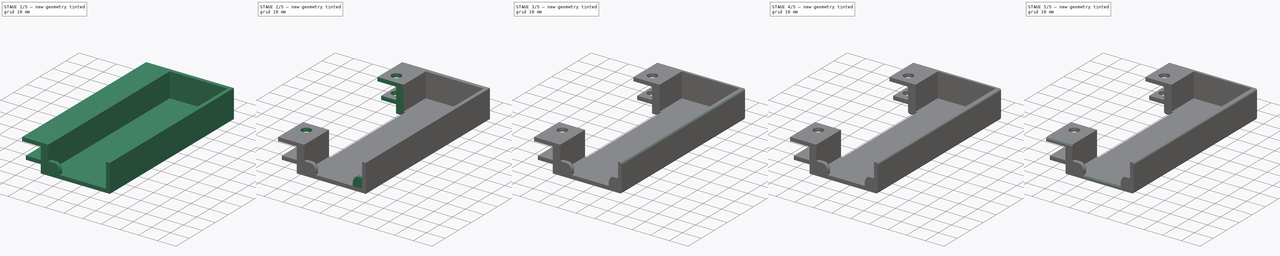
[diagram: build sequence overview — one tinted view per stage of 5, left to right]
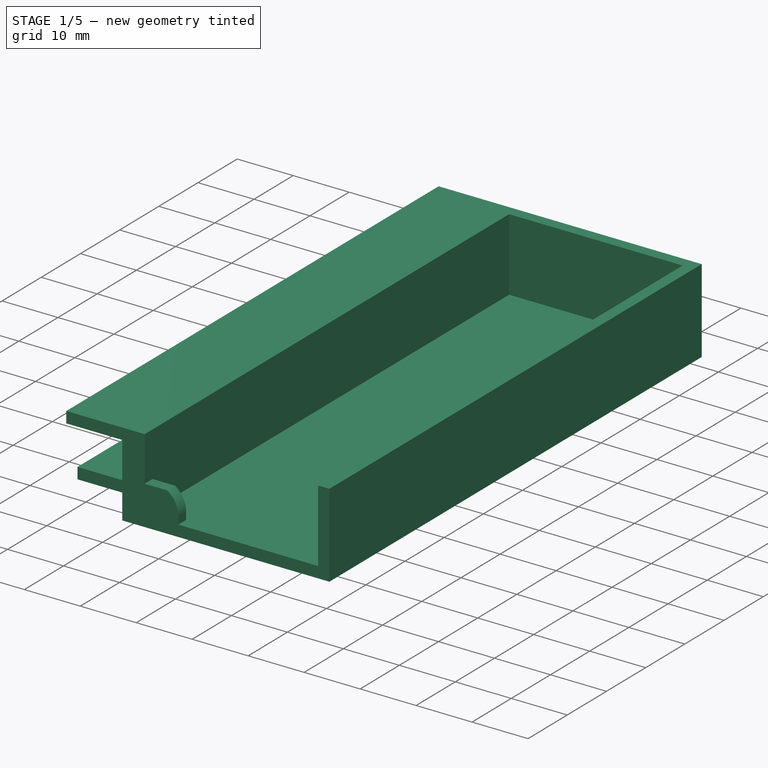
[diagram: stage 1 of 5 — iso view after this stage's code; geometry added in this stage tinted green]
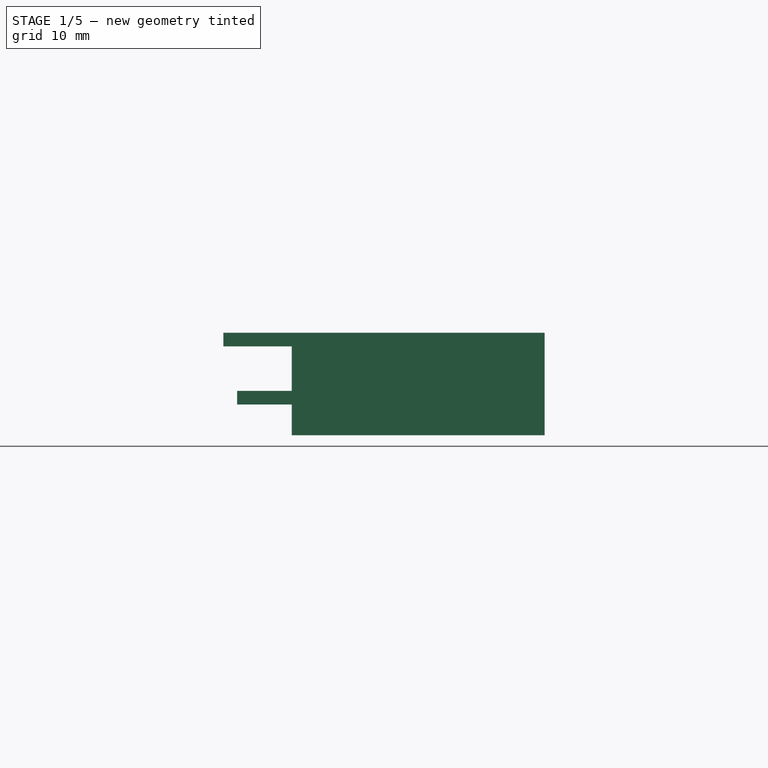
[diagram: stage 1 of 5 — front view after this stage's code; geometry added in this stage tinted green]
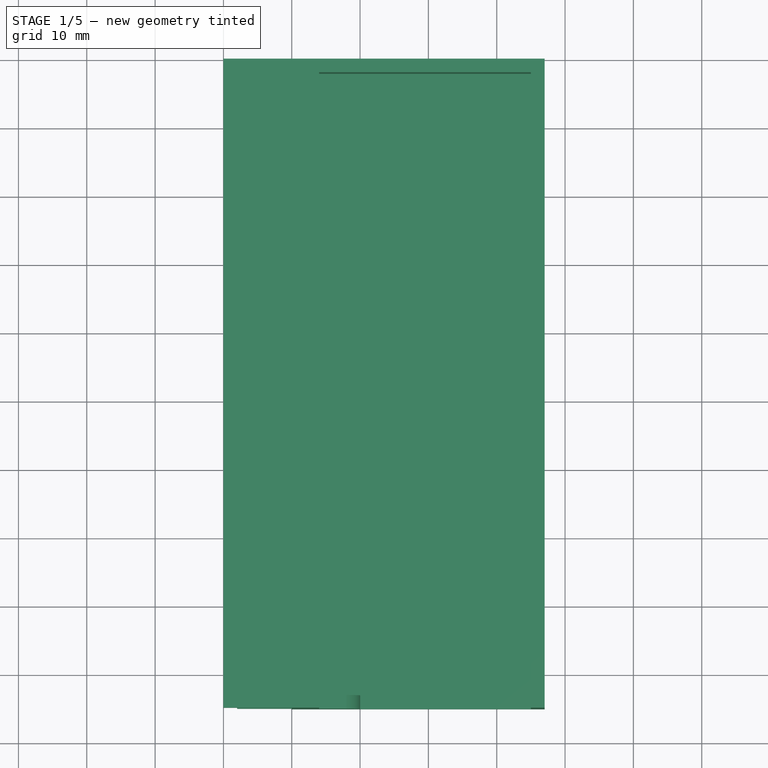
[diagram: stage 1 of 5 — top view after this stage's code; geometry added in this stage tinted green]
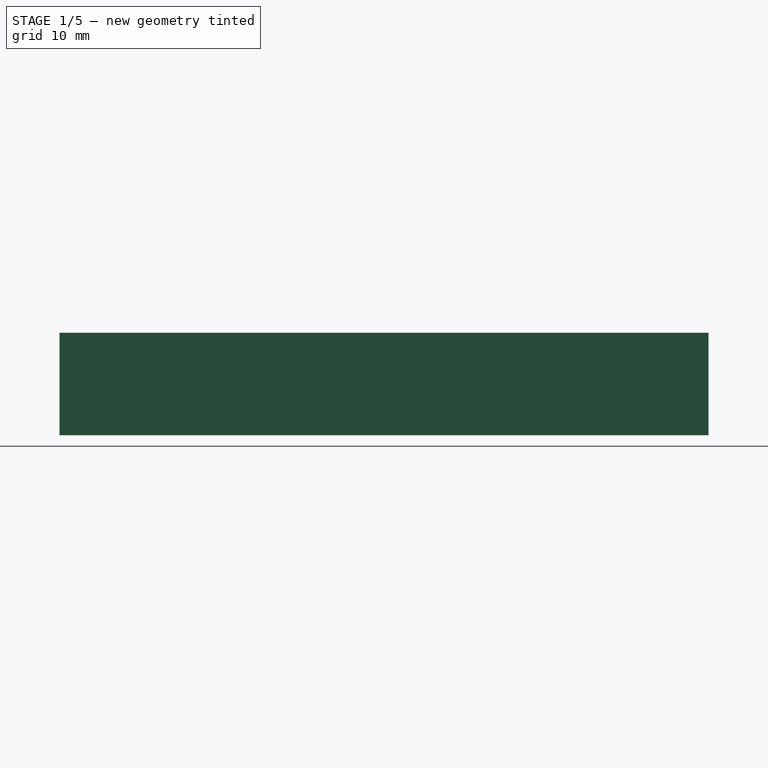
[diagram: stage 1 of 5 — right view after this stage's code; geometry added in this stage tinted green]
FCSTD DOCUMENT  (FreeCAD 0.18R4 (GitTag))
Label: sts-pi-batterybracket02
License: All rights reserved
LicenseURL: http://en.wikipedia.org/wiki/All_rights_reserved
objects: PartDesign::Fillet×10, Sketcher::SketchObject×6, PartDesign::Pad×4, PartDesign::Pocket×2, PartDesign::Body×1
note: 29 computed .brp shape members not serialized (recipe doc carries the construction recipe); baked Part::Feature solids carry a one-line shape summary decoded from their .brp

FEATURE [Sketcher::SketchObject] Sketch
  MapMode = 5
  Placement = pos=(0,0,0) rot=(1,0,0;1.5708rad)
  Support = -> [XZ_Plane]
  sketch-geometry (14):
    g0: LineSegment StartX=2 StartY=-3.25 StartZ=0 EndX=10 EndY=-3.25 EndZ=0
    g1: LineSegment StartX=10 StartY=-3.25 StartZ=0 EndX=10 EndY=3.25 EndZ=0
    g2: LineSegment StartX=10 StartY=3.25 StartZ=0 EndX=0 EndY=3.25 EndZ=0
    g3: LineSegment StartX=0 StartY=3.25 StartZ=0 EndX=0 EndY=5.25 EndZ=0
    g4: LineSegment StartX=0 StartY=5.25 StartZ=0 EndX=14 EndY=5.25 EndZ=0
    g5: LineSegment StartX=14 StartY=5.25 StartZ=0 EndX=14 EndY=-7.75 EndZ=0
    g6: LineSegment StartX=14 StartY=-7.75 StartZ=0 EndX=45 EndY=-7.75 EndZ=0
    g7: LineSegment StartX=45 StartY=-7.75 StartZ=0 EndX=45 EndY=5.25 EndZ=0
    g8: LineSegment StartX=45 StartY=5.25 StartZ=0 EndX=47 EndY=5.25 EndZ=0
    g9: LineSegment StartX=47 StartY=5.25 StartZ=0 EndX=47 EndY=-9.75 EndZ=0
    g10: LineSegment StartX=47 StartY=-9.75 StartZ=0 EndX=10 EndY=-9.75 EndZ=0
    g11: LineSegment StartX=10 StartY=-9.75 StartZ=0 EndX=10 EndY=-5.25 EndZ=0
    g12: LineSegment StartX=10 StartY=-5.25 StartZ=0 EndX=2 EndY=-5.25 EndZ=0
    g13: LineSegment StartX=2 StartY=-5.25 StartZ=0 EndX=2 EndY=-3.25 EndZ=0
  constraints (41):
    c: Horizontal(g0)
    c: Coincident(g0,g1)
    c: Coincident(g1,g2)
    c: Horizontal(g2)
    c: Coincident(g2,g3)
    c: Vertical(g3)
    c: Coincident(g3,g4)
    c: Horizontal(g4)
    c: Coincident(g4,g5)
    c: Vertical(g5)
    c: Coincident(g5,g6)
    c: Horizontal(g6)
    c: Coincident(g6,g7)
    c: Vertical(g7)
    c: Coincident(g7,g8)
    c: Coincident(g8,g9)
    c: Vertical(g9)
    c: Coincident(g9,g10)
    c: Horizontal(g10)
    c: Coincident(g10,g11)
    c: Vertical(g11)
    c: Coincident(g11,g12)
    c: Horizontal(g12)
    c: Coincident(g12,g13)
    c: Vertical(g13)
    c: Coincident(g0,g13)
    c: Horizontal(g8)
    c: DistanceX(g2,g2) = 10
    c: DistanceY(g1,g1) = 6.5
    c: Symmetric(g1,g0,g-1)
    c: DistanceY(g3,g3) = 2
    c: DistanceY(g13,g13) = 2
    c: DistanceX(g4,g4) = 14
    c: DistanceY(g5,g5) = 13
    c: DistanceY(g10,g5) = 2
    c: DistanceX(g6,g6) = 31
    c: DistanceX(g8,g8) = 2
    c: DistanceY(g7,g7) = 13
    c: DistanceX(g-1,g2) = 0
    c: DistanceX(g12) = 2
    c: DistanceX(g12,g12) = 8
FEATURE [PartDesign::Pad] Pad
  Length = 95
  Length2 = 100
  Placement = pos=(0,0,0) rot=(1,0,0;1.5708rad)
  Profile = -> Sketch
  Type = 0
FEATURE [Sketcher::SketchObject] Sketch001
  ExternalGeometry = -> [Pad]
  MapMode = 5
  Placement = pos=(0,0,0) rot=(-1,0,0;1.5708rad)
  Support = -> [Pad]
  sketch-geometry (4):
    g0: LineSegment StartX=10 StartY=9.75 StartZ=0 EndX=47 EndY=9.75 EndZ=0
    g1: LineSegment StartX=47 StartY=9.75 StartZ=0 EndX=47 EndY=-5.25 EndZ=0
    g2: LineSegment StartX=47 StartY=-5.25 StartZ=0 EndX=10 EndY=-5.25 EndZ=0
    g3: LineSegment StartX=10 StartY=-5.25 StartZ=0 EndX=10 EndY=9.75 EndZ=0
  constraints (10):
    c: Coincident(g0,g1)
    c: Coincident(g1,g2)
    c: Coincident(g2,g3)
    c: Coincident(g3,g0)
    c: Horizontal(g0)
    c: Horizontal(g2)
    c: Vertical(g1)
    c: Vertical(g3)
    c: Coincident(g0,g-3)
    c: Coincident(g1,g-4)
FEATURE [PartDesign::Pad] Pad001  label="full end"
  BaseFeature = -> Pad
  Length = 2
  Length2 = 100
  Placement = pos=(0,0,0) rot=(1,0,0;1.5708rad)
  Profile = -> Sketch001
  Reversed = true
  Type = 0
FEATURE [Sketcher::SketchObject] Sketch002
  ExternalGeometry = -> [Pad001]
  MapMode = 5
  Placement = pos=(0,-95,-2.11e-14) rot=(1,0,0;1.5708rad)
  Support = -> [Pad001]
  sketch-geometry (5):
    g0: LineSegment StartX=10 StartY=-9.75 StartZ=0 EndX=10 EndY=-2.75 EndZ=0
    g1: LineSegment StartX=10 StartY=-9.75 StartZ=0 EndX=20 EndY=-9.75 EndZ=0
    g2: LineSegment StartX=10 StartY=-2.75 StartZ=0 EndX=18 EndY=-2.75 EndZ=0
    g3: LineSegment StartX=20 StartY=-9.75 StartZ=0 EndX=20 EndY=-6.75 EndZ=0
    g4: ArcOfCircle CenterX=15.6626 CenterY=-6.41868 CenterZ=0 NormalX=0 NormalY=0 NormalZ=1 AngleXU=0 Radius=4.35 StartAngle=6.20695 EndAngle=7.28672
  constraints (15):
    c: Vertical(g0)
    c: Coincident(g1,g0)
    c: Horizontal(g1)
    c: Coincident(g2,g0)
    c: Horizontal(g2)
    c: Vertical(g3)
    c: Coincident(g4,g2)
    c: Coincident(g4,g3)
    c: Coincident(g1,g3)
    c: Coincident(g-3,g0)
    c: DistanceY(g0,g0) = 7
    c: DistanceX(g0,g1) = 10
    c: DistanceX(g2,g2) = 8
    c: Radius(g4) = 4.35
    c: DistanceY(g1,g3) = 3
FEATURE [PartDesign::Pad] Pad002  label="sml end1"
  BaseFeature = -> Pad001
  Length = 2
  Length2 = 100
  Placement = pos=(0,0,0) rot=(1,0,0;1.5708rad)
  Profile = -> Sketch002
  Reversed = true
  Type = 0
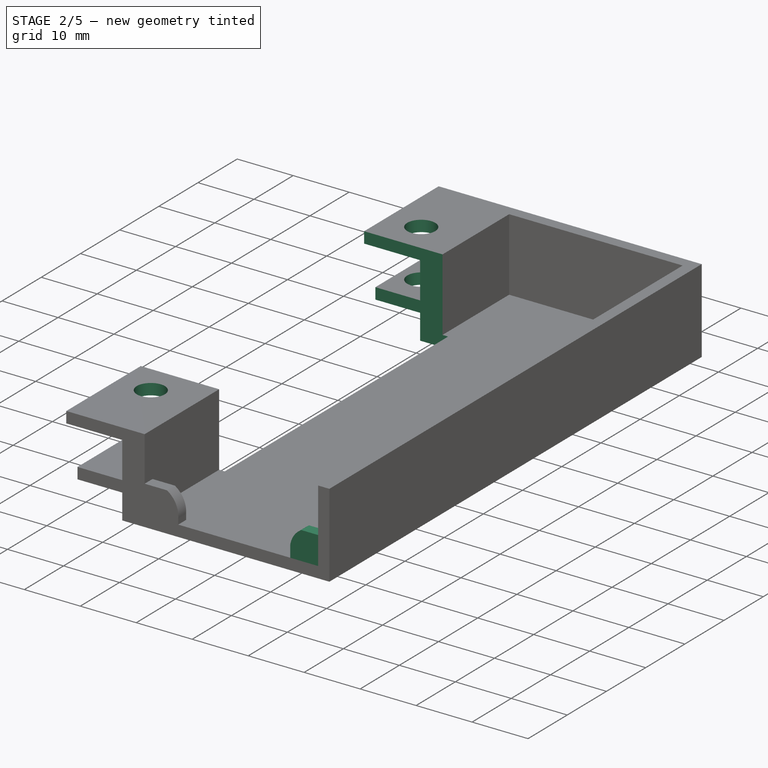
[diagram: stage 2 of 5 — iso view after this stage's code; geometry added in this stage tinted green]
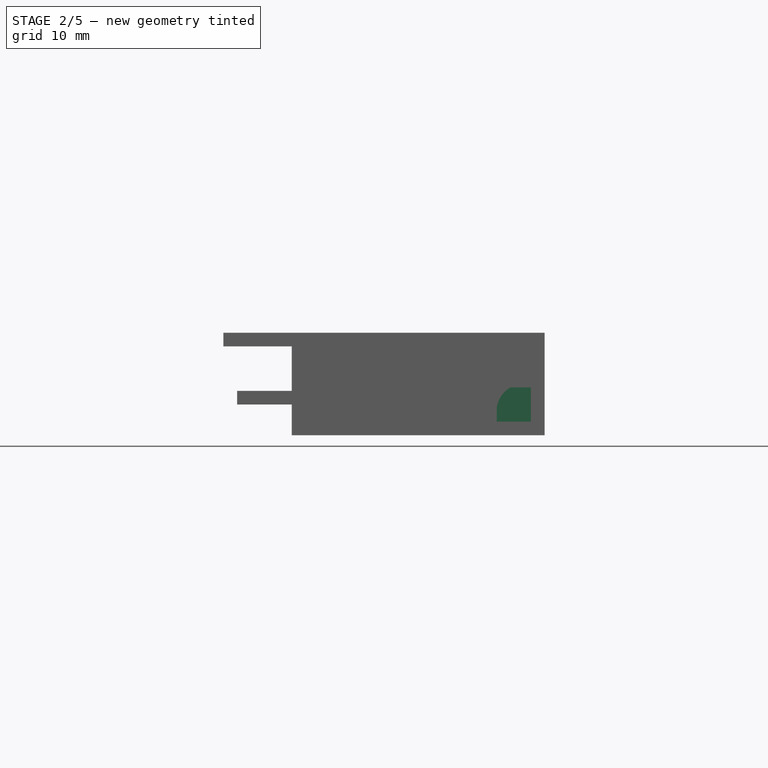
[diagram: stage 2 of 5 — front view after this stage's code; geometry added in this stage tinted green]
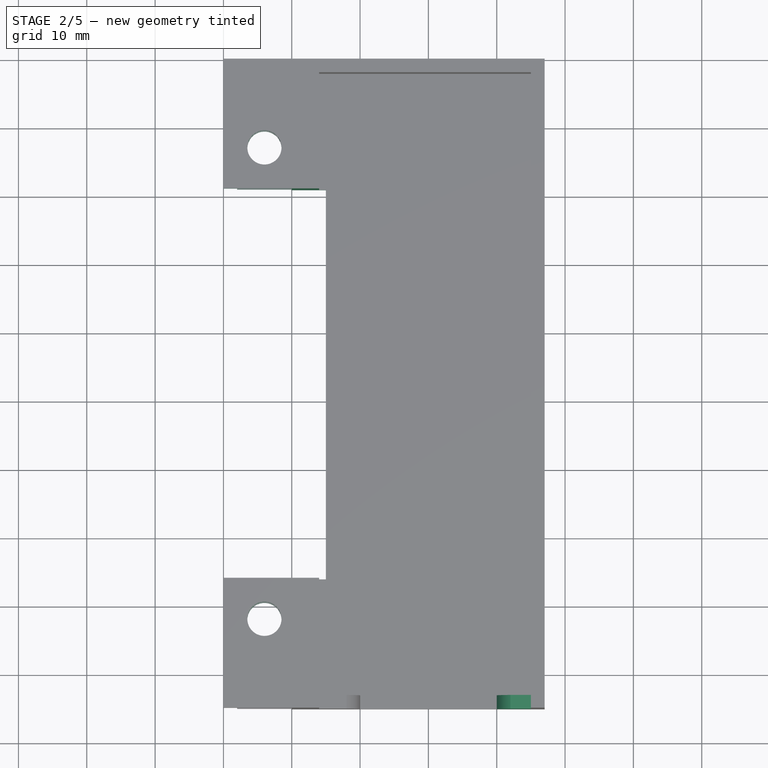
[diagram: stage 2 of 5 — top view after this stage's code; geometry added in this stage tinted green]
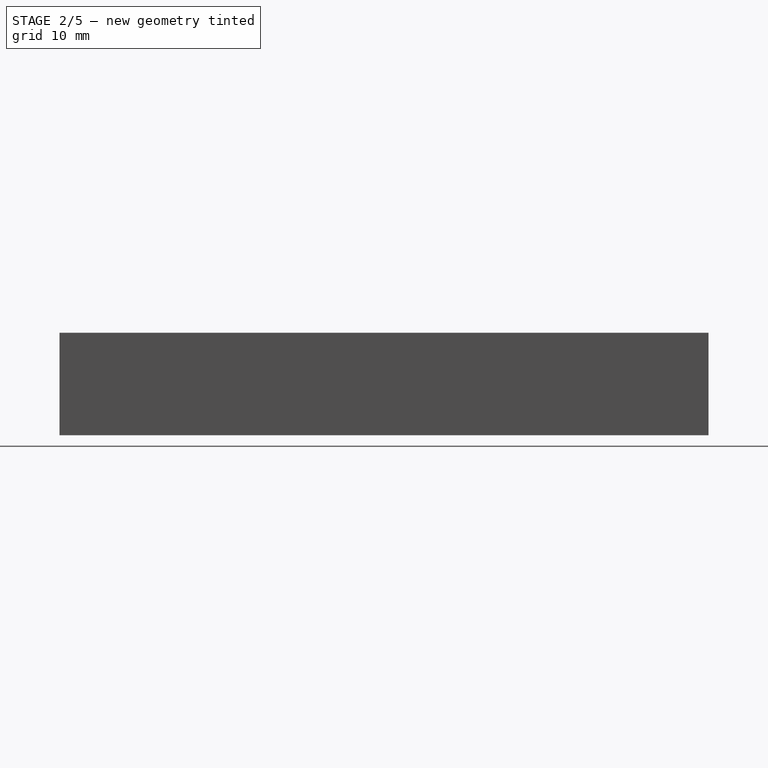
[diagram: stage 2 of 5 — right view after this stage's code; geometry added in this stage tinted green]
FEATURE [Sketcher::SketchObject] Sketch003
  ExternalGeometry = -> [Pad002]
  MapMode = 5
  Placement = pos=(0,-95,-2.11e-14) rot=(1,0,0;1.5708rad)
  Support = -> [Pad002]
  sketch-geometry (5):
    g0: LineSegment StartX=47 StartY=-9.75 StartZ=0 EndX=40 EndY=-9.75 EndZ=0
    g1: LineSegment StartX=40 StartY=-9.75 StartZ=0 EndX=40 EndY=-5.75 EndZ=0
    g2: LineSegment StartX=47 StartY=-9.75 StartZ=0 EndX=47 EndY=-2.75 EndZ=0
    g3: LineSegment StartX=47 StartY=-2.75 StartZ=0 EndX=42 EndY=-2.75 EndZ=0
    g4: ArcOfCircle CenterX=43.9896 CenterY=-6.2431 CenterZ=0 NormalX=0 NormalY=0 NormalZ=1 AngleXU=0 Radius=4.02 StartAngle=2.08856 EndAngle=3.01862
  constraints (15):
    c: Horizontal(g0)
    c: Coincident(g1,g0)
    c: Vertical(g1)
    c: Coincident(g2,g0)
    c: Vertical(g2)
    c: Coincident(g3,g2)
    c: Horizontal(g3)
    c: Coincident(g4,g1)
    c: Coincident(g4,g3)
    c: Coincident(g-3,g0)
    c: DistanceY(g2,g2) = 7
    c: DistanceX(g0,g0) = 7
    c: DistanceY(g1,g1) = 4
    c: DistanceX(g3,g3) = 5
    c: Radius(g4) = 4.02
FEATURE [PartDesign::Pad] Pad003  label="sml end2"
  BaseFeature = -> Pad002
  Length = 2
  Length2 = 100
  Placement = pos=(0,0,0) rot=(1,0,0;1.5708rad)
  Profile = -> Sketch003
  Reversed = true
  Type = 0
FEATURE [Sketcher::SketchObject] Sketch004
  ExternalGeometry = -> [Pad003]
  MapMode = 5
  Placement = pos=(0,-1.2e-15,5.25) rot=(0,0,1;3.14159rad)
  Support = -> [Pad003]
  sketch-geometry (4):
    g0: LineSegment StartX=-15 StartY=76 StartZ=0 EndX=0 EndY=76 EndZ=0
    g1: LineSegment StartX=0 StartY=76 StartZ=0 EndX=0 EndY=19 EndZ=0
    g2: LineSegment StartX=0 StartY=19 StartZ=0 EndX=-15 EndY=19 EndZ=0
    g3: LineSegment StartX=-15 StartY=19 StartZ=0 EndX=-15 EndY=76 EndZ=0
  constraints (12):
    c: Coincident(g0,g1)
    c: Coincident(g1,g2)
    c: Coincident(g2,g3)
    c: Coincident(g3,g0)
    c: Horizontal(g0)
    c: Horizontal(g2)
    c: Vertical(g1)
    c: Vertical(g3)
    c: DistanceY(g-1,g1) = 19
    c: DistanceY(g0,g-3) = 19
    c: DistanceX(g1,g-1) = 0
    c: DistanceX(g2,g2) = 15
FEATURE [PartDesign::Pocket] Pocket  label="cutout"
  BaseFeature = -> Pad003
  Length = 5
  Length2 = 100
  Placement = pos=(0,0,0) rot=(1,0,0;1.5708rad)
  Profile = -> Sketch004
  Type = 1
FEATURE [Sketcher::SketchObject] Sketch005
  ExternalGeometry = -> [Pocket]
  MapMode = 5
  Placement = pos=(0,-1.2e-15,5.25) rot=(0,0,1;3.14159rad)
  Support = -> [Pocket]
  sketch-geometry (2):
    g0: Circle CenterX=-6 CenterY=82 CenterZ=0 NormalX=0 NormalY=0 NormalZ=1 AngleXU=0 Radius=2.5
    g1: Circle CenterX=-6 CenterY=13 CenterZ=0 NormalX=0 NormalY=0 NormalZ=1 AngleXU=0 Radius=2.5
  constraints (6):
    c: Radius(g0) = 2.5
    c: Equal(g1,g0)
    c: DistanceY(g1,g0) = 69
    c: DistanceY(g-1,g1) = 13
    c: DistanceX(g1,g-3) = 6
    c: DistanceX(g0,g1) = 0
FEATURE [PartDesign::Pocket] Pocket001
  BaseFeature = -> Pocket
  Length = 5
  Length2 = 100
  Placement = pos=(0,0,0) rot=(1,0,0;1.5708rad)
  Profile = -> Sketch005
  Type = 1
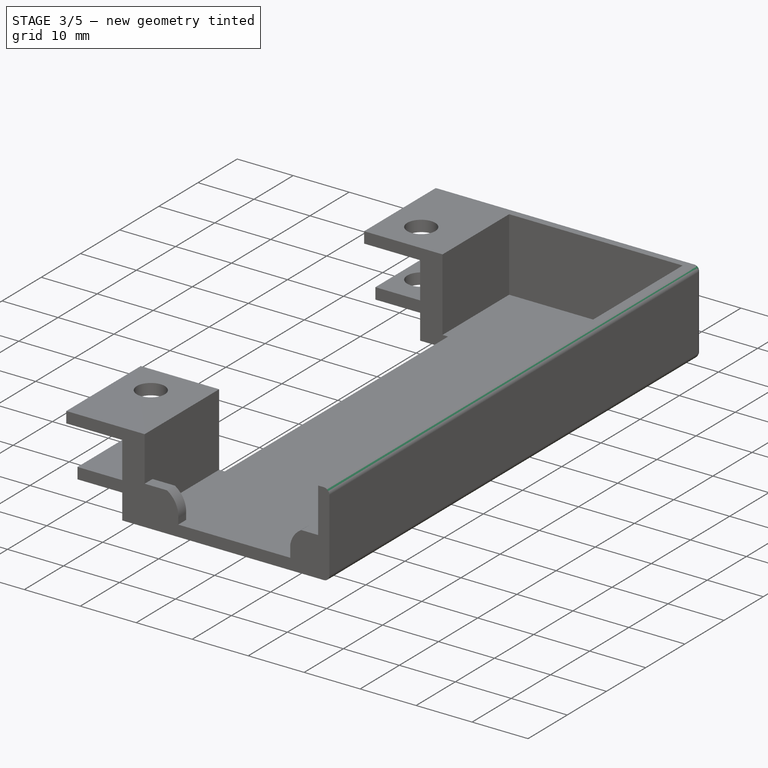
[diagram: stage 3 of 5 — iso view after this stage's code; geometry added in this stage tinted green]
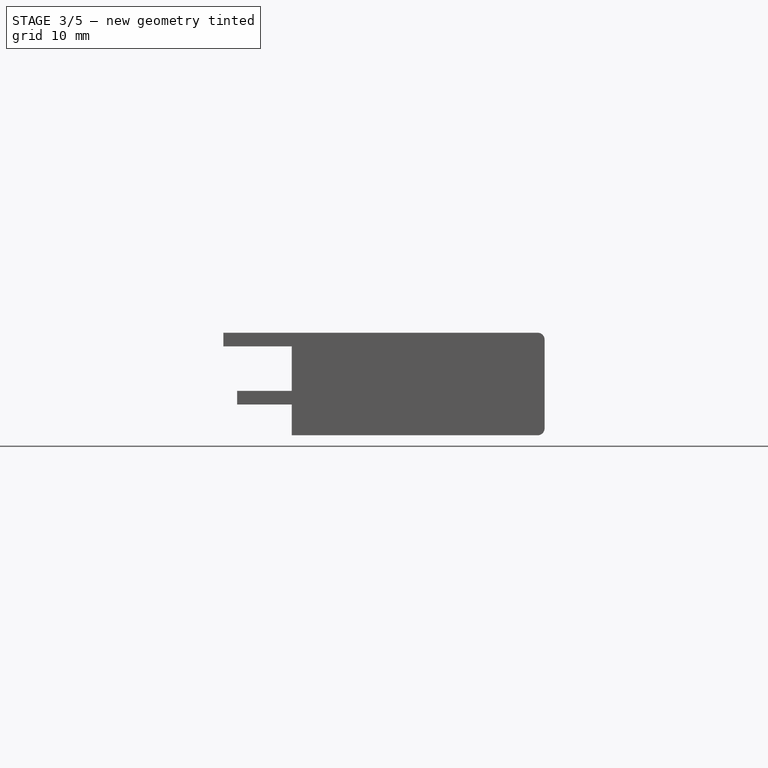
[diagram: stage 3 of 5 — front view after this stage's code; geometry added in this stage tinted green]
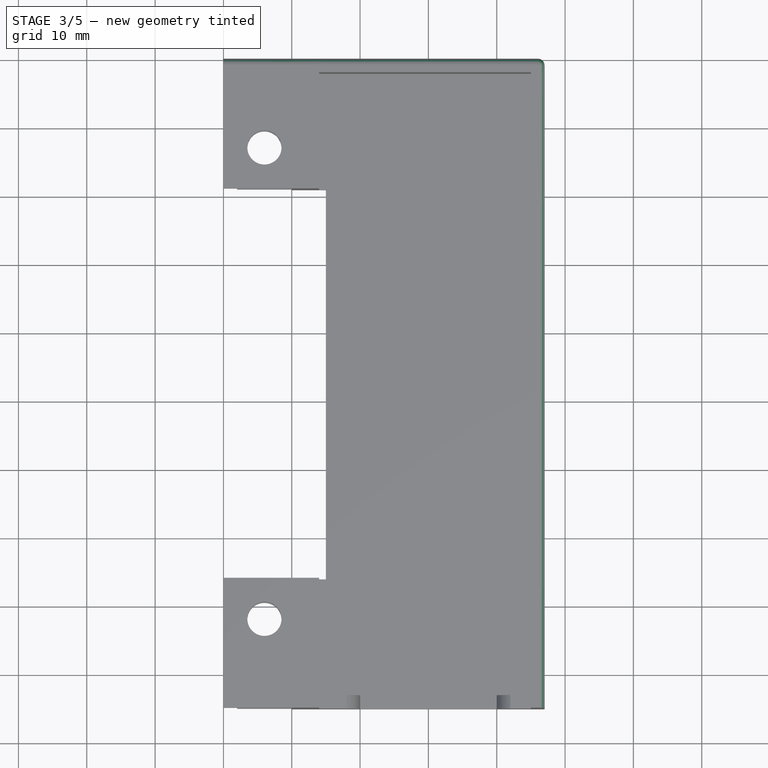
[diagram: stage 3 of 5 — top view after this stage's code; geometry added in this stage tinted green]
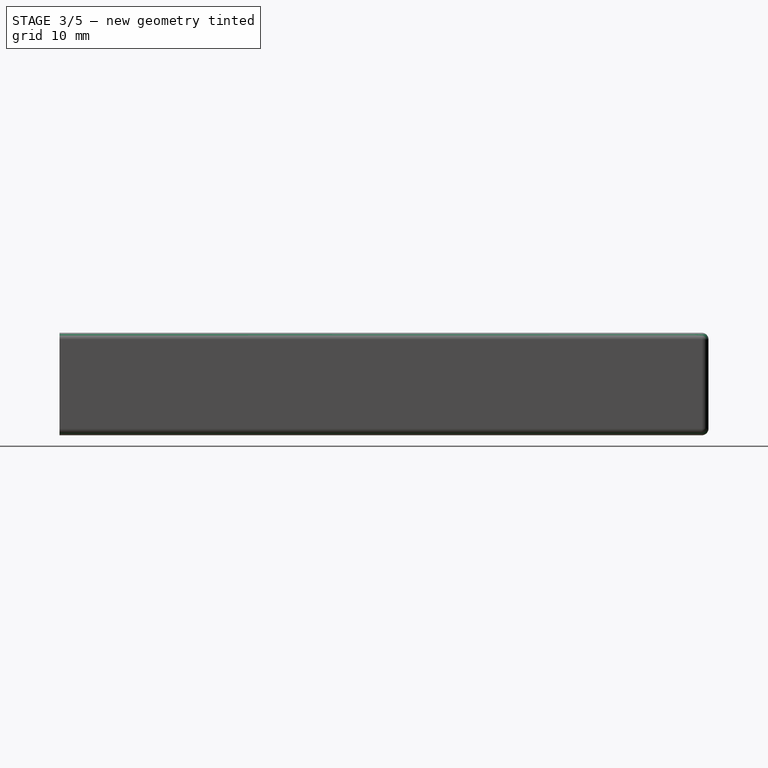
[diagram: stage 3 of 5 — right view after this stage's code; geometry added in this stage tinted green]
FEATURE [PartDesign::Fillet] Fillet
  Base = -> Pocket001 [Edge70]
  BaseFeature = -> Pocket001
  Placement = pos=(0,0,0) rot=(1,0,0;1.5708rad)
  Radius = 1
FEATURE [PartDesign::Fillet] Fillet001
  Base = -> Fillet [Edge58]
  BaseFeature = -> Fillet
  Placement = pos=(0,0,0) rot=(1,0,0;1.5708rad)
  Radius = 1
FEATURE [PartDesign::Fillet] Fillet002
  Base = -> Fillet001 [Edge25]
  BaseFeature = -> Fillet001
  Placement = pos=(0,0,0) rot=(1,0,0;1.5708rad)
  Radius = 1
FEATURE [PartDesign::Fillet] Fillet003
  Base = -> Fillet002 [Edge11]
  BaseFeature = -> Fillet002
  Placement = pos=(0,0,0) rot=(1,0,0;1.5708rad)
  Radius = 1
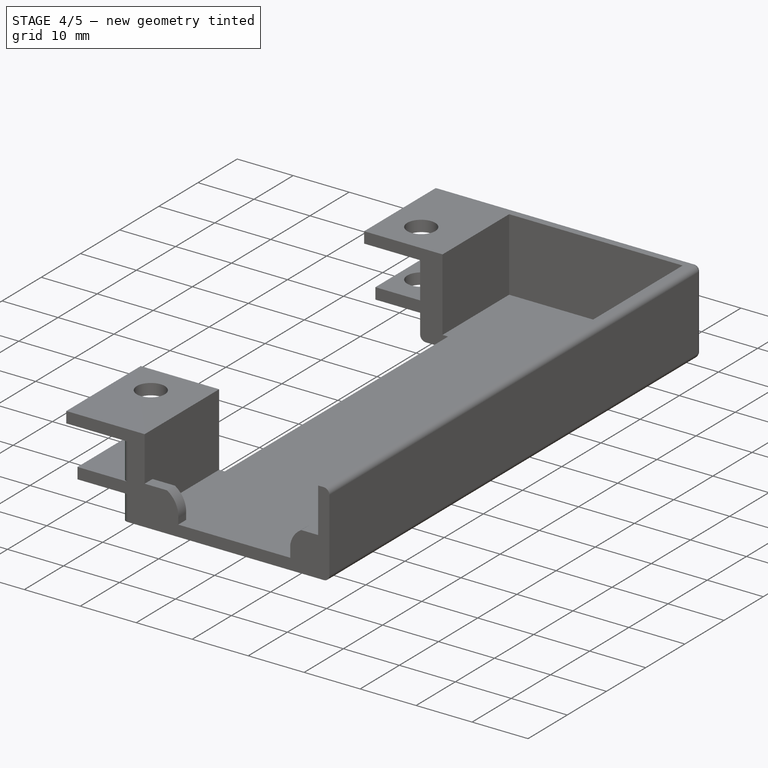
[diagram: stage 4 of 5 — iso view after this stage's code; geometry added in this stage tinted green]
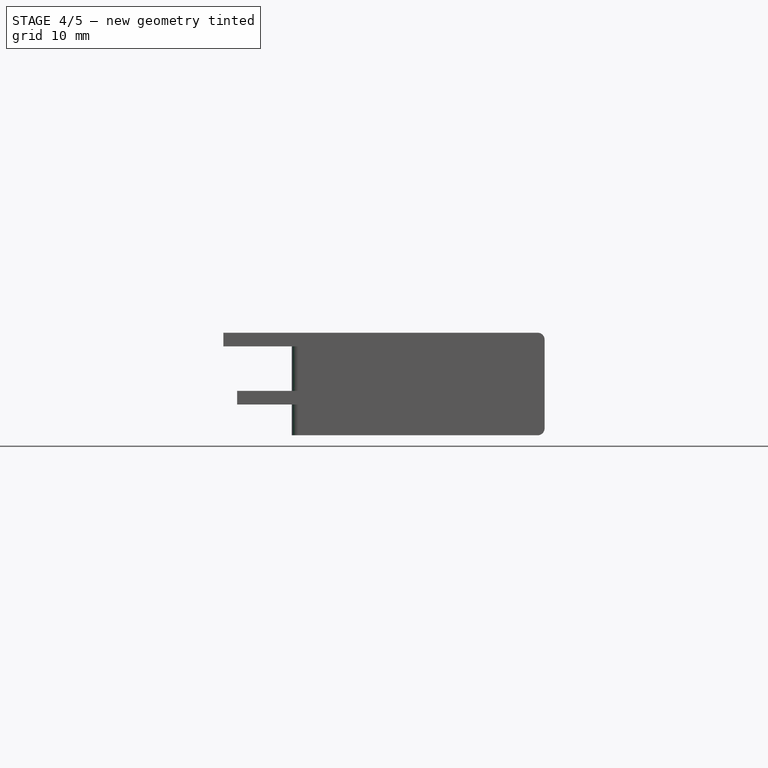
[diagram: stage 4 of 5 — front view after this stage's code; geometry added in this stage tinted green]
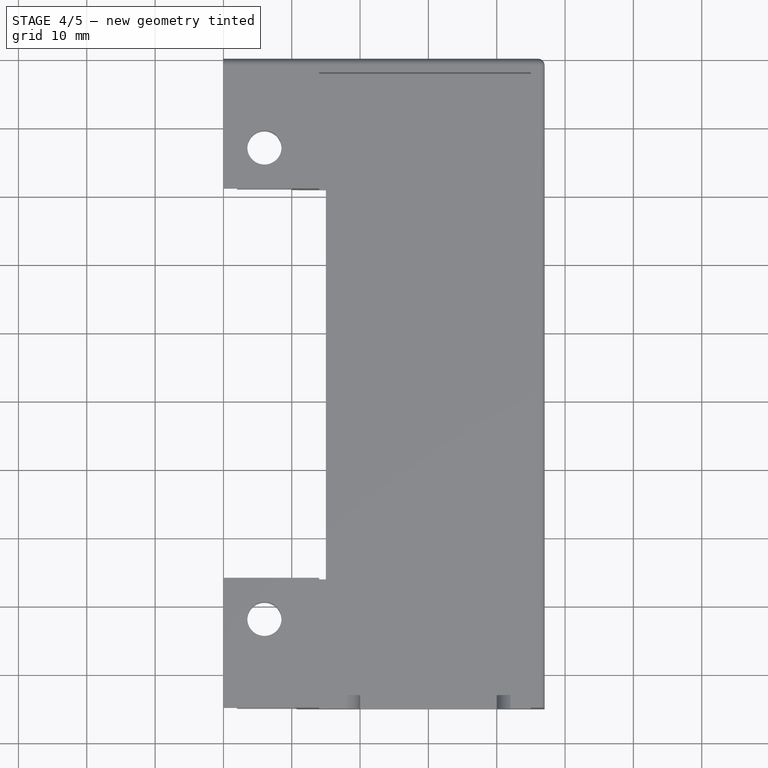
[diagram: stage 4 of 5 — top view after this stage's code; geometry added in this stage tinted green]
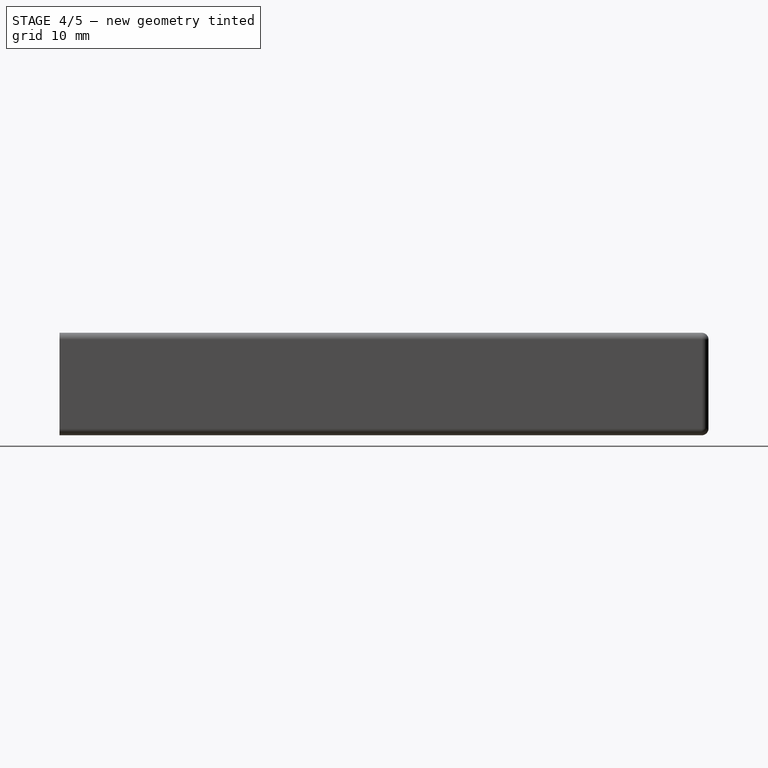
[diagram: stage 4 of 5 — right view after this stage's code; geometry added in this stage tinted green]
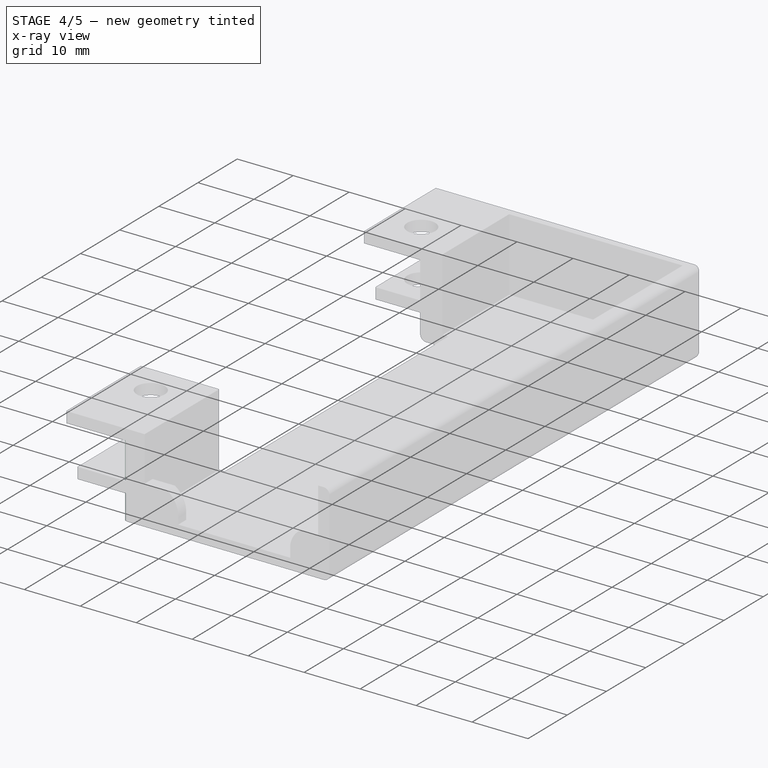
[diagram: stage 4 of 5 — x-ray composite at the iso view; earlier geometry ghosted, this stage's added geometry solid]
FEATURE [PartDesign::Fillet] Fillet004
  Base = -> Fillet003 [Edge4]
  BaseFeature = -> Fillet003
  Placement = pos=(0,0,0) rot=(1,0,0;1.5708rad)
  Radius = 1
FEATURE [PartDesign::Fillet] Fillet005
  Base = -> Fillet004 [Edge181]
  BaseFeature = -> Fillet004
  Placement = pos=(0,0,0) rot=(1,0,0;1.5708rad)
  Radius = 1
FEATURE [PartDesign::Fillet] Fillet006
  Base = -> Fillet005 [Edge77]
  BaseFeature = -> Fillet005
  Placement = pos=(0,0,0) rot=(1,0,0;1.5708rad)
  Radius = 1
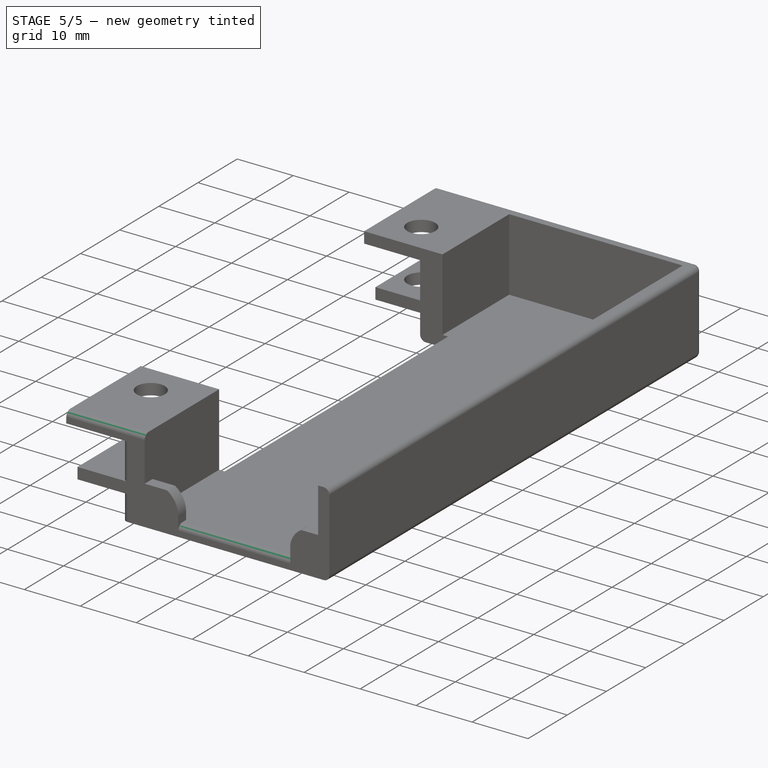
[diagram: stage 5 of 5 — iso view after this stage's code; geometry added in this stage tinted green]
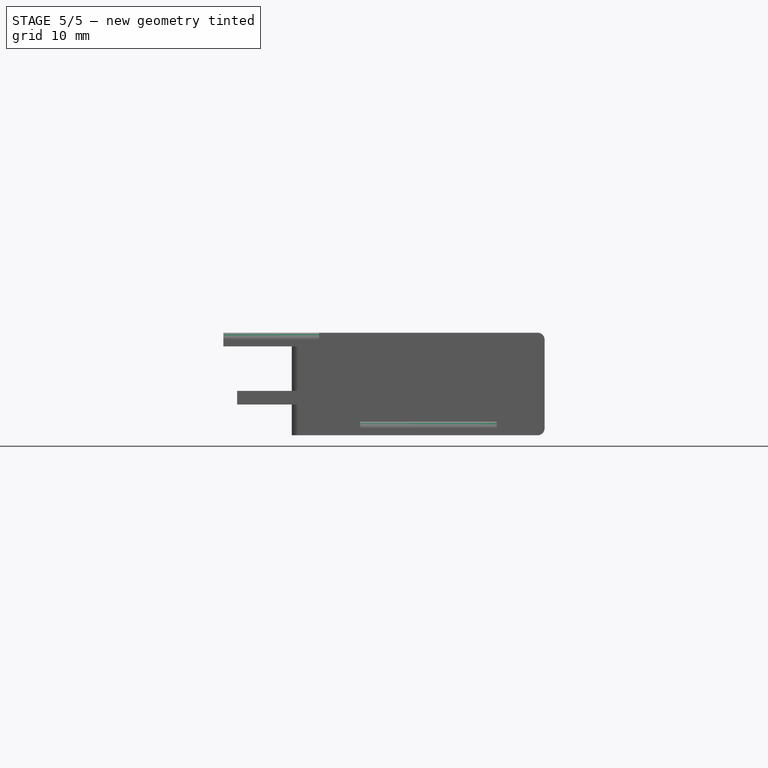
[diagram: stage 5 of 5 — front view after this stage's code; geometry added in this stage tinted green]
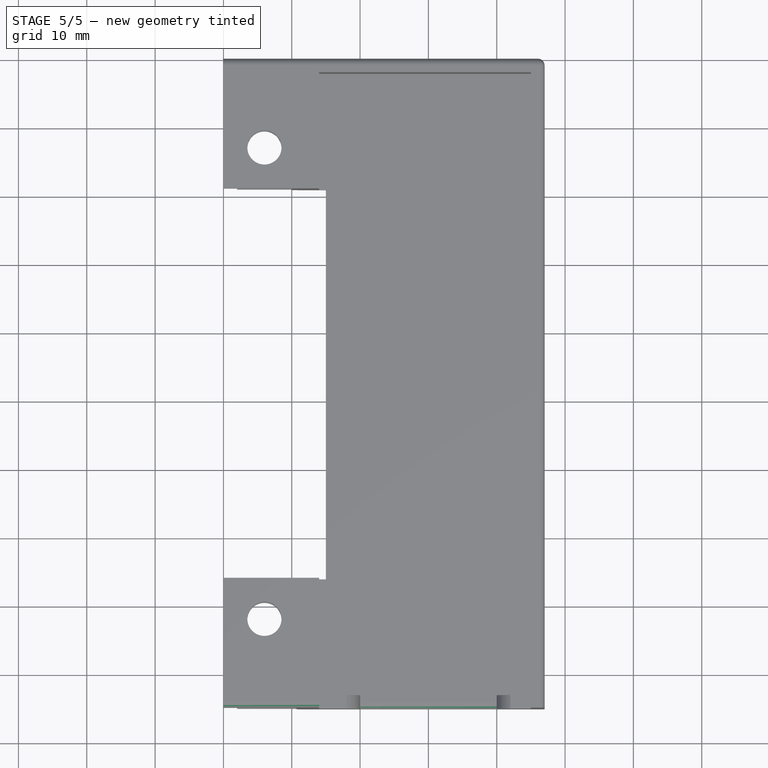
[diagram: stage 5 of 5 — top view after this stage's code; geometry added in this stage tinted green]
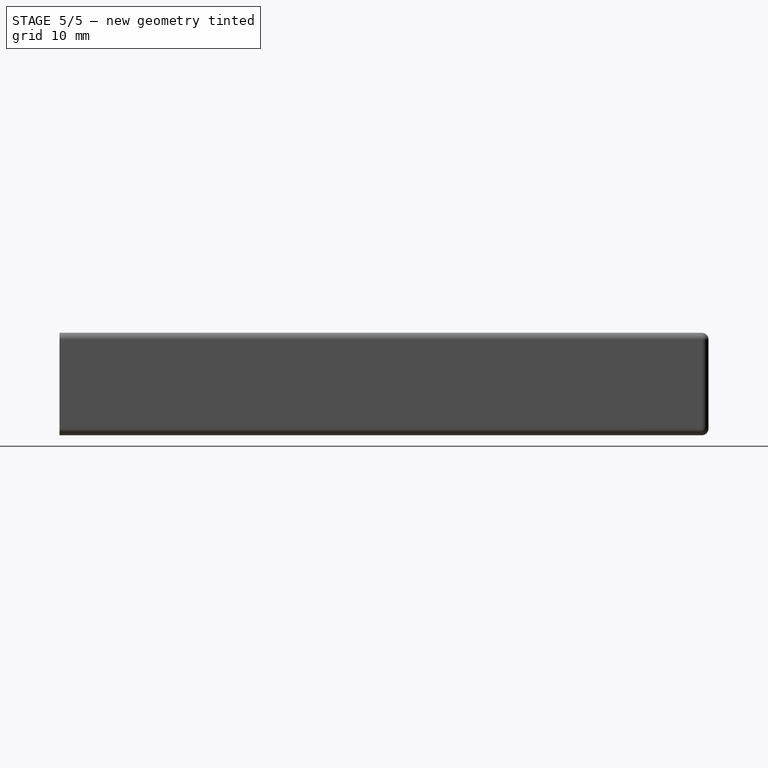
[diagram: stage 5 of 5 — right view after this stage's code; geometry added in this stage tinted green]
FEATURE [PartDesign::Fillet] Fillet007
  Base = -> Fillet006 [Edge60]
  BaseFeature = -> Fillet006
  Placement = pos=(0,0,0) rot=(1,0,0;1.5708rad)
  Radius = 1
FEATURE [PartDesign::Fillet] Fillet008
  Base = -> Fillet007 [Edge93]
  BaseFeature = -> Fillet007
  Placement = pos=(0,0,0) rot=(1,0,0;1.5708rad)
  Radius = 1
FEATURE [PartDesign::Fillet] Fillet009
  Base = -> Fillet008 [Edge24]
  BaseFeature = -> Fillet008
  Placement = pos=(0,0,0) rot=(1,0,0;1.5708rad)
  Radius = 1
FEATURE [PartDesign::Body] Body
  Group = -> [Sketch,Pad,Sketch001,Pad001,Sketch002,Pad002,Sketch003,Pad003,Sketch004,Pocket,Sketch005,Pocket001,Fillet,Fillet001,Fillet002,Fillet003,Fillet004,Fillet005,Fillet006,Fillet007,Fillet008,Fillet009]
  Origin = -> Origin
  Tip = -> Fillet009
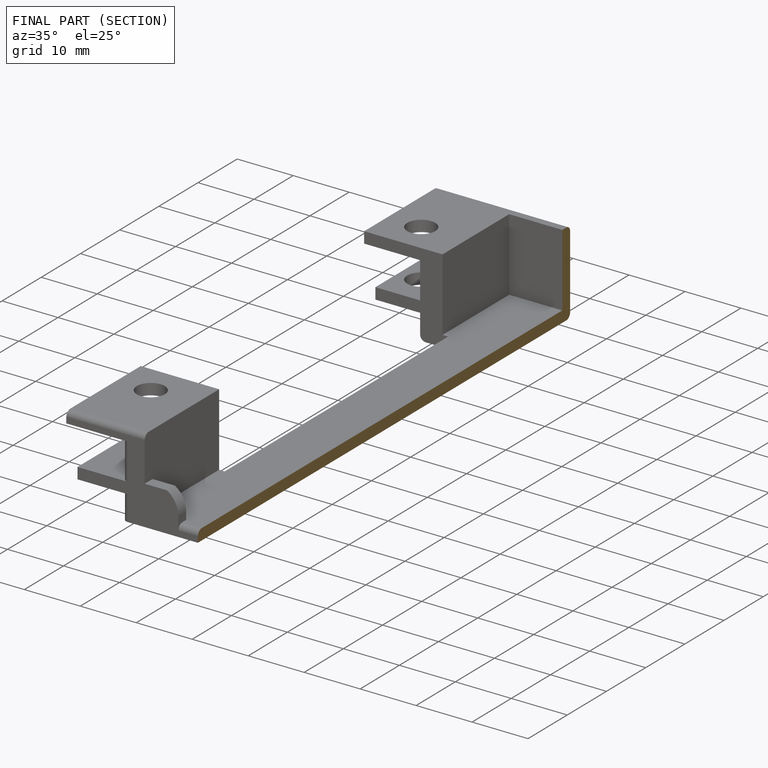
[diagram: finished part — half-section view (interior)]
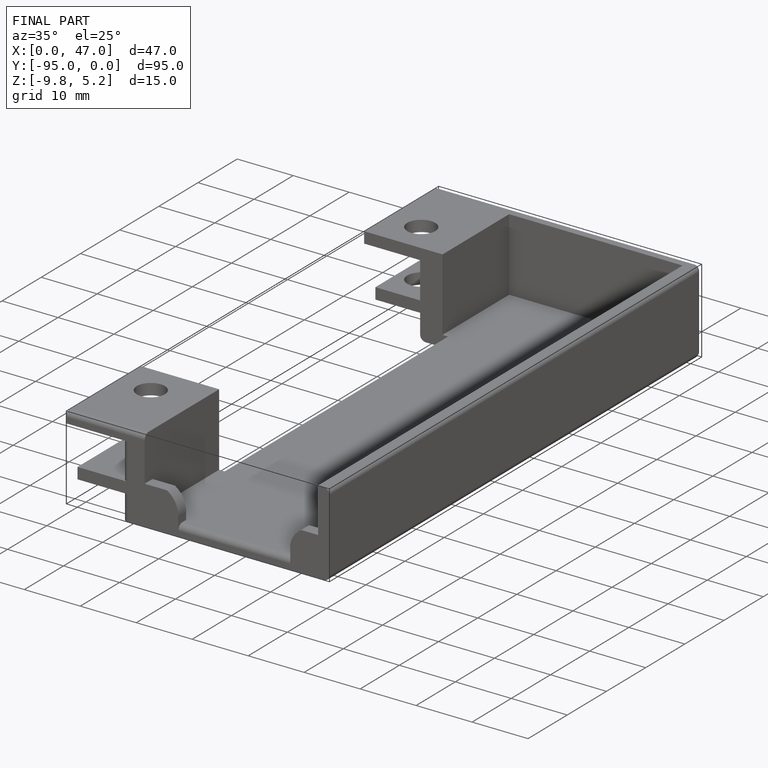
[diagram: finished part — iso view with bounding-box wireframe]
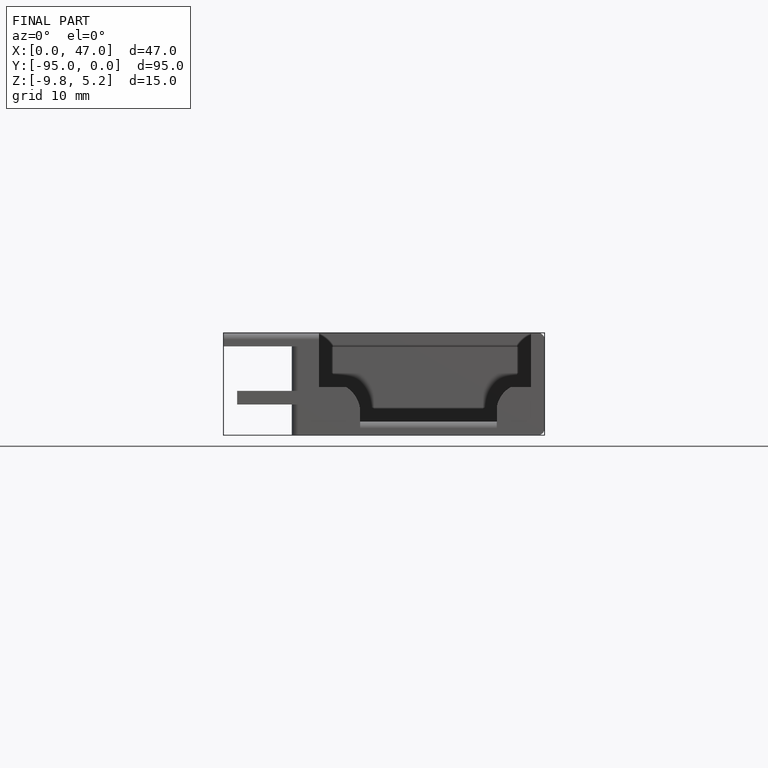
[diagram: finished part — front view with bounding-box wireframe]
